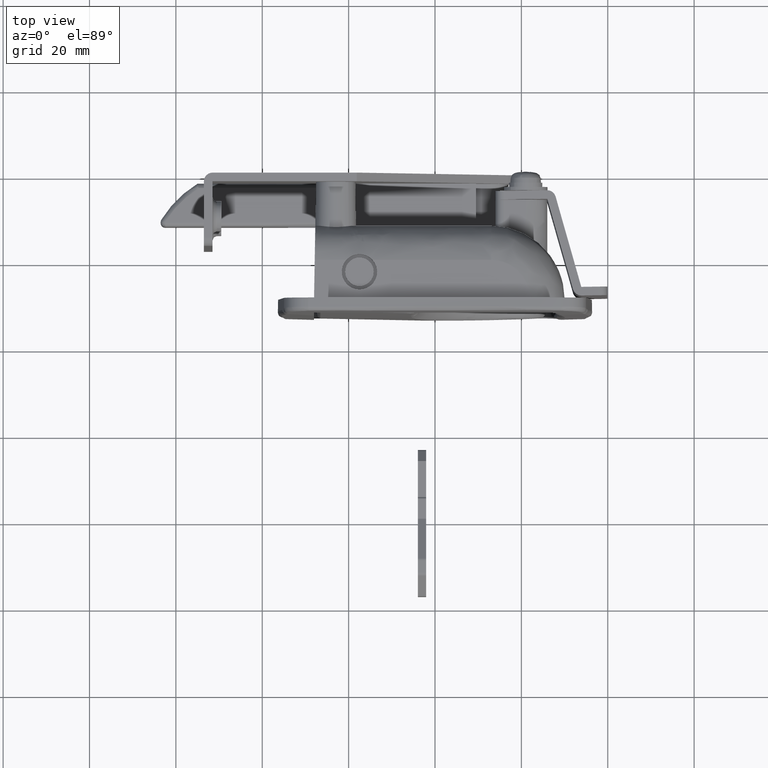
[diagram: clean part render]
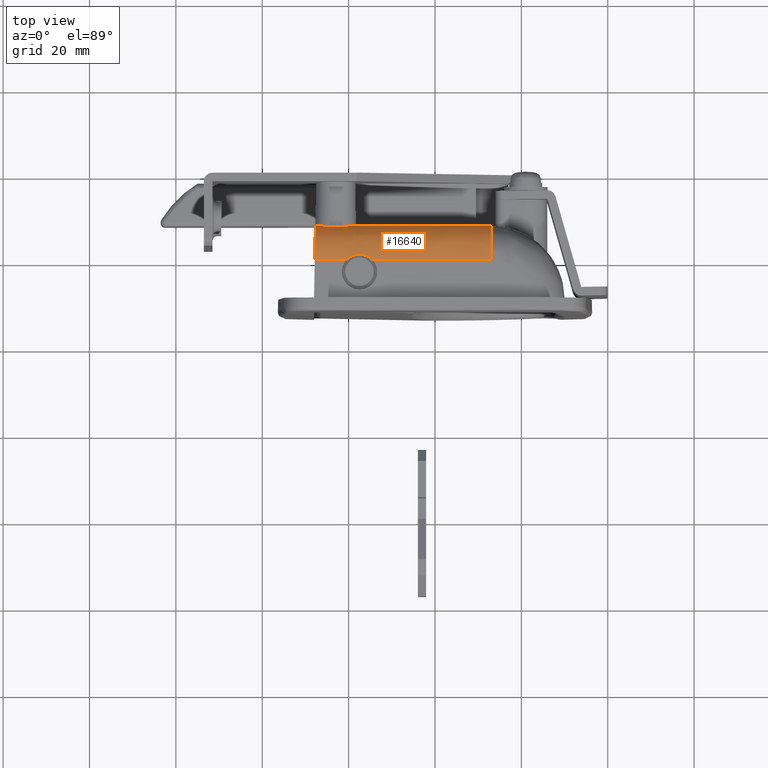
[diagram: same view with one face highlighted and labeled with its STEP entity id]
A machine part, top view. The second image highlights one B-rep face of the part: STEP entity #16640.
In plain terms, the highlighted face is a freeform B-spline surface patch.
Its self-contained STEP definition (entity closure, byte-faithful):
#7811=CARTESIAN_POINT('',(-14.505004173625521,-20.199999999999999,40.500200000000000));
#7812=VERTEX_POINT('',#7811);
#7831=CARTESIAN_POINT('',(-20.494995826374449,-20.199999999999999,40.500200000000000));
#7832=VERTEX_POINT('',#7831);
#7833=CARTESIAN_POINT('',(-20.494995826374499,-20.199999999999999,40.500200000000000));
#7834=CARTESIAN_POINT('',(-20.301953859629840,-19.993514326887372,40.500200000000007));
#7835=CARTESIAN_POINT('',(-20.091312893559810,-19.810536787122960,40.492335254260126));
#7836=CARTESIAN_POINT('',(-19.749941584716041,-19.569670950182498,40.475735227688453));
#7837=CARTESIAN_POINT('',(-19.631881276972749,-19.495029421333840,40.469378251274982));
#7838=CARTESIAN_POINT('',(-19.448195305890899,-19.391749844563119,40.459341163817918));
#7839=CARTESIAN_POINT('',(-19.385695419362619,-19.358695840529890,40.455902108426841));
#7840=CARTESIAN_POINT('',(-19.259739366994658,-19.296182974736919,40.449042903946037));
#7841=CARTESIAN_POINT('',(-19.196194772844059,-19.266662857594319,40.445617979114431));
#7842=CARTESIAN_POINT('',(-18.875680558716660,-19.127580882575071,40.428786165530688));
#7843=CARTESIAN_POINT('',(-18.610422026484340,-19.043302999083750,40.416347636629020));
#7844=CARTESIAN_POINT('',(-18.267585055314878,-18.971883976661069,40.405384366478771));
#7845=CARTESIAN_POINT('',(-18.198449145400129,-18.959313615732398,40.403415629528709));
#7846=CARTESIAN_POINT('',(-18.059012990707071,-18.937675278742901,40.399988369889243));
#7847=CARTESIAN_POINT('',(-17.989052075060979,-18.928667181629201,40.398539426148083));
#7848=CARTESIAN_POINT('',(-17.779666397781920,-18.907143038633031,40.395054791590127));
#7849=CARTESIAN_POINT('',(-17.500796865174330,-18.892921678889710,40.392692564162907));
#7850=CARTESIAN_POINT('',(-17.222537070707290,-18.907014529350459,40.395033449013688));
#7851=CARTESIAN_POINT('',(-17.014072660960199,-18.928298444606519,40.398479990463372));
#7852=CARTESIAN_POINT('',(-16.944622996973671,-18.937182165366831,40.399909395397373));
#7853=CARTESIAN_POINT('',(-16.805801759408570,-18.958586735353141,40.403301322996938));
#7854=CARTESIAN_POINT('',(-16.736229432434271,-18.971151946395828,40.405270650730607));
#7855=CARTESIAN_POINT('',(-16.391359296283330,-19.042689083150201,40.416258612211571));
#7856=CARTESIAN_POINT('',(-16.125749597504399,-19.127129147003298,40.428718663252873));
#7857=CARTESIAN_POINT('',(-15.742110275670839,-19.293350985015490,40.448854136318758));
#7858=CARTESIAN_POINT('',(-15.616712217326221,-19.355405234593430,40.455792732994539));
#7859=CARTESIAN_POINT('',(-15.432432392881470,-19.458796086202678,40.465864804078080));
#7860=CARTESIAN_POINT('',(-15.371787161229250,-19.494912486349250,40.469156297096042));
#7861=CARTESIAN_POINT('',(-15.253038039240190,-19.569826489467701,40.475430041419258));
#7862=CARTESIAN_POINT('',(-15.194786304947520,-19.608705535934870,40.478420444508203));
#7863=CARTESIAN_POINT('',(-14.909065596519920,-19.810129772770491,40.492326805573107));
#7864=CARTESIAN_POINT('',(-14.698030670825720,-19.993530873752029,40.500199999999992));
#7865=CARTESIAN_POINT('',(-14.505004173625521,-20.199999999999999,40.500200000000000));
#7866=B_SPLINE_CURVE_WITH_KNOTS('',3,(#7833,#7834,#7835,#7836,#7837,#7838,#7839,#7840,#7841,#7842,#7843,#7844,#7845,#7846,#7847,#7848,#7849,#7850,#7851,#7852,#7853,#7854,#7855,#7856,#7857,#7858,#7859,#7860,#7861,#7862,#7863,#7864,#7865),.UNSPECIFIED.,.F.,.U.,(4,2,2,2,2,2,2,2,1,2,2,2,2,2,2,2,4),(0.0,0.125000000000000,0.187500000000000,0.218750000000000,0.250000000000001,0.375000000000003,0.406250000000003,0.437500000000002,0.500000000000002,0.562500000000001,0.593750000000001,0.625000000000001,0.749999999999998,0.812499999999998,0.843749999999998,0.874999999999998,1.0),.UNSPECIFIED.);
#7867=EDGE_CURVE('',#7832,#7812,#7866,.T.);
#9406=CARTESIAN_POINT('',(-26.987400691499150,-12.199999999999999,32.500200000000000));
#9407=VERTEX_POINT('',#9406);
#9416=CARTESIAN_POINT('',(-19.976725630229328,-12.277184310039329,33.608784021257847));
#9417=VERTEX_POINT('',#9416);
#9418=CARTESIAN_POINT('',(-26.987400691499150,-12.199999999999999,32.500200000000000));
#9419=CARTESIAN_POINT('',(-26.880656468512509,-12.200000038522241,32.670452788799977));
#9420=CARTESIAN_POINT('',(-26.764422973753440,-12.205408385691911,32.831899227141420));
#9421=CARTESIAN_POINT('',(-26.513724963701652,-12.223995585526691,33.138064920438573));
#9422=CARTESIAN_POINT('',(-26.379257866964060,-12.237186072610800,33.282781035775777));
#9423=CARTESIAN_POINT('',(-26.163731020858339,-12.260837309718131,33.487317920495897));
#9424=CARTESIAN_POINT('',(-26.089577297846631,-12.269367390351981,33.553400911582813));
#9425=CARTESIAN_POINT('',(-25.974793555629169,-12.282894818578489,33.649322585936602));
#9426=CARTESIAN_POINT('',(-25.935884735253630,-12.287532702090990,33.680802580221020));
#9427=CARTESIAN_POINT('',(-25.857390247509510,-12.296949296131389,33.742275023680158));
#9428=CARTESIAN_POINT('',(-25.817755503550039,-12.301733658877710,33.772311296430807));
#9429=CARTESIAN_POINT('',(-25.617661321094531,-12.325926902638800,33.919044516914191));
#9430=CARTESIAN_POINT('',(-25.451464900278360,-12.346136329784080,34.025442885717602));
#9431=CARTESIAN_POINT('',(-25.106863846182812,-12.385734448337169,34.216822446223382));
#9432=CARTESIAN_POINT('',(-24.928460086801330,-12.405129640955520,34.301803899921929));
#9433=CARTESIAN_POINT('',(-24.651257308181680,-12.431891877213641,34.412772097358832));
#9434=CARTESIAN_POINT('',(-24.556989446933532,-12.440443619431830,34.447068957772103));
#9435=CARTESIAN_POINT('',(-24.367774319874432,-12.456285212582610,34.509153551924747));
#9436=CARTESIAN_POINT('',(-24.272570825902701,-12.463602894116431,34.537061939939832));
#9437=CARTESIAN_POINT('',(-23.985190123886881,-12.483472132776891,34.611556076985998));
#9438=CARTESIAN_POINT('',(-23.791248762760709,-12.493927790120210,34.648947589675970));
#9439=CARTESIAN_POINT('',(-23.496762149165971,-12.504564812746880,34.686619511780840));
#9440=CARTESIAN_POINT('',(-23.398002664554390,-12.507272513322381,34.696098368110079));
#9441=CARTESIAN_POINT('',(-23.199263062412751,-12.510904924205519,34.708783674664687));
#9442=CARTESIAN_POINT('',(-23.099031463330160,-12.511829193942461,34.711989007111413));
#9443=CARTESIAN_POINT('',(-22.798144596546109,-12.511805941120119,34.711907873887988));
#9444=CARTESIAN_POINT('',(-22.599728063571309,-12.508069875284690,34.699034848290623));
#9445=CARTESIAN_POINT('',(-22.207056545061999,-12.493847328983430,34.648658280251389));
#9446=CARTESIAN_POINT('',(-22.012801974992119,-12.483360356217981,34.611152229619172));
#9447=CARTESIAN_POINT('',(-21.724532728022730,-12.463389882154200,34.536251650096823));
#9448=CARTESIAN_POINT('',(-21.628963065641869,-12.456029578901370,34.508168624424492));
#9449=CARTESIAN_POINT('',(-21.438879201355721,-12.440081270238149,34.445624460050212));
#9450=CARTESIAN_POINT('',(-21.345244913128699,-12.431567256643630,34.411448012110327));
#9451=CARTESIAN_POINT('',(-21.069053353395329,-12.404865884572940,34.300652352954032));
#9452=CARTESIAN_POINT('',(-20.890904276888062,-12.385488988752540,34.215708841173047));
#9453=CARTESIAN_POINT('',(-20.546146067684891,-12.345853343073140,34.023988592042322));
#9454=CARTESIAN_POINT('',(-20.379536567488049,-12.325587737944319,33.917213974804369));
#9455=CARTESIAN_POINT('',(-20.138401779820320,-12.296435319178920,33.740044785465543));
#9456=CARTESIAN_POINT('',(-20.059838628008539,-12.286972401107130,33.678373445942640));
#9457=CARTESIAN_POINT('',(-19.981446291299651,-12.277739678796641,33.612747699838302));
#9458=CARTESIAN_POINT('',(-19.979084851148531,-12.277461760261399,33.610766897784139));
#9459=CARTESIAN_POINT('',(-19.976725630229328,-12.277184310039329,33.608784021257847));
#9460=B_SPLINE_CURVE_WITH_KNOTS('',3,(#9418,#9419,#9420,#9421,#9422,#9423,#9424,#9425,#9426,#9427,#9428,#9429,#9430,#9431,#9432,#9433,#9434,#9435,#9436,#9437,#9438,#9439,#9440,#9441,#9442,#9443,#9444,#9445,#9446,#9447,#9448,#9449,#9450,#9451,#9452,#9453,#9454,#9455,#9456,#9457,#9458,#9459),.UNSPECIFIED.,.F.,.U.,(4,2,2,2,2,2,2,2,2,2,2,2,2,2,2,2,2,2,2,2,4),(0.0,0.062499999999997,0.124999999999994,0.156249999999992,0.171874999999992,0.187499999999992,0.249999999999993,0.312499999999995,0.343749999999995,0.374999999999996,0.437499999999996,0.468749999999995,0.499999999999995,0.562499999999996,0.624999999999997,0.656249999999997,0.687499999999997,0.749999999999998,0.812499999999998,0.843749999999998,0.844721533435368),.UNSPECIFIED.);
#9461=EDGE_CURVE('',#9407,#9417,#9460,.T.);
#9505=CARTESIAN_POINT('',(-19.012599308500850,-12.199999999999999,32.500200000000000));
#9506=VERTEX_POINT('',#9505);
#9507=CARTESIAN_POINT('',(-19.976725630229328,-12.277184310039329,33.608784021257847));
#9508=CARTESIAN_POINT('',(-19.903198999592782,-12.268537242417599,33.546986401552680));
#9509=CARTESIAN_POINT('',(-19.831827903217871,-12.260345046787441,33.483173852325429));
#9510=CARTESIAN_POINT('',(-19.619606005061119,-12.237076181510149,33.281554515953687));
#9511=CARTESIAN_POINT('',(-19.485614396507749,-12.223941227686360,33.137296589446322));
#9512=CARTESIAN_POINT('',(-19.235497570696179,-12.205409328503411,32.831763719336060));
#9513=CARTESIAN_POINT('',(-19.119368752993051,-12.200000279158131,32.670493044924932));
#9514=CARTESIAN_POINT('',(-19.012599308500850,-12.199999999999999,32.500200000000000));
#9515=B_SPLINE_CURVE_WITH_KNOTS('',3,(#9507,#9508,#9509,#9510,#9511,#9512,#9513,#9514),.UNSPECIFIED.,.F.,.U.,(4,2,2,4),(0.844721533435368,0.874999999999998,0.937499999999999,1.0),.UNSPECIFIED.);
#9516=EDGE_CURVE('',#9417,#9506,#9515,.T.);
#15286=CARTESIAN_POINT('',(13.002000000000001,-12.199999999999999,32.500200000000000));
#15287=VERTEX_POINT('',#15286);
#15304=CARTESIAN_POINT('',(13.002000000000001,-20.199999999999999,40.500200000000000));
#15305=VERTEX_POINT('',#15304);
#15306=CARTESIAN_POINT('',(13.002000000000001,-12.199999999999999,32.500200000000000));
#15307=CARTESIAN_POINT('',(13.001999999999979,-12.199551669845750,33.318388328509563));
#15308=CARTESIAN_POINT('',(13.002000000000050,-12.382356803686180,34.496212482386881));
#15309=CARTESIAN_POINT('',(13.001999999999970,-12.946102284197250,35.931042079594832));
#15310=CARTESIAN_POINT('',(13.001999999999970,-13.473820809263430,36.876055867652290));
#15311=CARTESIAN_POINT('',(13.002000000000089,-14.320785242719840,38.003835993579152));
#15312=CARTESIAN_POINT('',(13.001999999999979,-15.451644532627810,39.016260684988552));
#15313=CARTESIAN_POINT('',(13.001999999999970,-16.680680068752540,39.712228515110112));
#15314=CARTESIAN_POINT('',(13.002000000000081,-17.775864006888270,40.150249646582253));
#15315=CARTESIAN_POINT('',(13.001999999999830,-18.891012761699649,40.429575768786492));
#15316=CARTESIAN_POINT('',(13.001999999999990,-19.774583334143969,40.500221440881489));
#15317=CARTESIAN_POINT('',(13.002000000000001,-20.199999999999999,40.500200000000000));
#15318=B_SPLINE_CURVE_WITH_KNOTS('',3,(#15306,#15307,#15308,#15309,#15310,#15311,#15312,#15313,#15314,#15315,#15316,#15317),.UNSPECIFIED.,.F.,.U.,(4,1,1,1,1,1,1,1,1,4),(0.000000081632548,2.454379335587637,3.534315886584746,4.614245565700580,5.694172757093167,7.755834723905995,9.130306624423993,9.915714514138125,11.290192677401411,12.566449463003099),.UNSPECIFIED.);
#15319=EDGE_CURVE('',#15287,#15305,#15318,.T.);
#16022=CARTESIAN_POINT('',(-27.706311111111201,-12.199999999999999,32.500200000000000));
#16023=VERTEX_POINT('',#16022);
#16029=CARTESIAN_POINT('',(-27.706311111111201,-12.199999999999999,32.500200000000000));
#16030=CARTESIAN_POINT('',(-26.987400691499150,-12.199999999999999,32.500200000000000));
#16031=QUASI_UNIFORM_CURVE('',1,(#16029,#16030),.UNSPECIFIED.,.F.,.U.);
#16032=EDGE_CURVE('',#16023,#9407,#16031,.T.);
#16055=CARTESIAN_POINT('',(-19.012599308500850,-12.199999999999999,32.500200000000000));
#16056=CARTESIAN_POINT('',(13.002000000000001,-12.199999999999999,32.500200000000000));
#16057=QUASI_UNIFORM_CURVE('',1,(#16055,#16056),.UNSPECIFIED.,.F.,.U.);
#16058=EDGE_CURVE('',#9506,#15287,#16057,.T.);
#16135=CARTESIAN_POINT('',(-27.846162962963000,-20.199999999999999,40.500200000000000));
#16136=VERTEX_POINT('',#16135);
#16137=CARTESIAN_POINT('',(-27.846162962963000,-20.199999999999999,40.500200000000000));
#16138=CARTESIAN_POINT('',(-27.838154604661320,-19.741894758164289,40.500258405221359));
#16139=CARTESIAN_POINT('',(-27.820421163423841,-18.727481806026070,40.412988175057372));
#16140=CARTESIAN_POINT('',(-27.795519322874320,-17.303012113564019,40.009396377684773));
#16141=CARTESIAN_POINT('',(-27.771414033643989,-15.924107856755951,39.315346368903633));
#16142=CARTESIAN_POINT('',(-27.752658381164999,-14.851220956464299,38.498996333318757));
#16143=CARTESIAN_POINT('',(-27.735767190435720,-13.884987588478751,37.471577158712890));
#16144=CARTESIAN_POINT('',(-27.722033252231022,-13.099359767450821,36.295931456523313));
#16145=CARTESIAN_POINT('',(-27.709712275189901,-12.394558114662249,34.594547198307787));
#16146=CARTESIAN_POINT('',(-27.706305788408130,-12.199695523356830,33.285702919624711));
#16147=CARTESIAN_POINT('',(-27.706311111111201,-12.199999999999999,32.500200000000000));
#16148=B_SPLINE_CURVE_WITH_KNOTS('',3,(#16137,#16138,#16139,#16140,#16141,#16142,#16143,#16144,#16145,#16146,#16147),.UNSPECIFIED.,.F.,.U.,(4,1,1,1,1,1,1,1,4),(0.000000074500525,1.374539339694913,3.043667611126017,4.418244003184878,5.989190969131206,7.069130784874520,8.640076380948191,10.211024294865229,12.567400421509619),.UNSPECIFIED.);
#16149=EDGE_CURVE('',#16136,#16023,#16148,.T.);
#16320=CARTESIAN_POINT('',(13.002000000000001,-20.199999999999999,40.500200000000000));
#16321=CARTESIAN_POINT('',(-14.505004173625521,-20.199999999999999,40.500200000000000));
#16322=QUASI_UNIFORM_CURVE('',1,(#16320,#16321),.UNSPECIFIED.,.F.,.U.);
#16323=EDGE_CURVE('',#15305,#7812,#16322,.T.);
#16329=CARTESIAN_POINT('',(-20.494995826374449,-20.199999999999999,40.500200000000000));
#16330=CARTESIAN_POINT('',(-27.846162962963000,-20.199999999999999,40.500200000000000));
#16331=QUASI_UNIFORM_CURVE('',1,(#16329,#16330),.UNSPECIFIED.,.F.,.U.);
#16332=EDGE_CURVE('',#7832,#16136,#16331,.T.);
#16615=CARTESIAN_POINT('',(-28.867367037037081,-20.548955098922690,40.492585772654863));
#16616=CARTESIAN_POINT('',(14.048734175925940,-20.548955098922690,40.492585772654863));
#16617=CARTESIAN_POINT('',(-28.867367037037077,-11.591516144753614,40.883676003439305));
#16618=CARTESIAN_POINT('',(14.048734175925938,-11.591516144753614,40.883676003439305));
#16619=CARTESIAN_POINT('',(-28.867367037037077,-12.219656802286133,31.939733723849447));
#16620=CARTESIAN_POINT('',(14.048734175925940,-12.219656802286133,31.939733723849447));
#16628=(BOUNDED_SURFACE()B_SPLINE_SURFACE(1,2,((#16615,#16617,#16619),(#16616,#16618,#16620)),.UNSPECIFIED.,.F.,.F.,.U.)B_SPLINE_SURFACE_WITH_KNOTS((2,2),(3,3),(0.0,42.916101212963021),(0.0,14.333942172743431),.UNSPECIFIED.)GEOMETRIC_REPRESENTATION_ITEM()RATIONAL_B_SPLINE_SURFACE(((1.0,0.664513855240123,0.996233646876941),(1.0,0.664513855240123,0.996233646876941)))REPRESENTATION_ITEM('')SURFACE());
#16629=ORIENTED_EDGE('',*,*,#9516,.F.);
#16630=ORIENTED_EDGE('',*,*,#9461,.F.);
#16631=ORIENTED_EDGE('',*,*,#16032,.F.);
#16632=ORIENTED_EDGE('',*,*,#16149,.F.);
#16633=ORIENTED_EDGE('',*,*,#16332,.F.);
#16634=ORIENTED_EDGE('',*,*,#7867,.T.);
#16635=ORIENTED_EDGE('',*,*,#16323,.F.);
#16636=ORIENTED_EDGE('',*,*,#15319,.F.);
#16637=ORIENTED_EDGE('',*,*,#16058,.F.);
#16638=EDGE_LOOP('',(#16629,#16630,#16631,#16632,#16633,#16634,#16635,#16636,#16637));
#16639=FACE_OUTER_BOUND('',#16638,.T.);
#16640=ADVANCED_FACE('',(#16639),#16628,.T.);